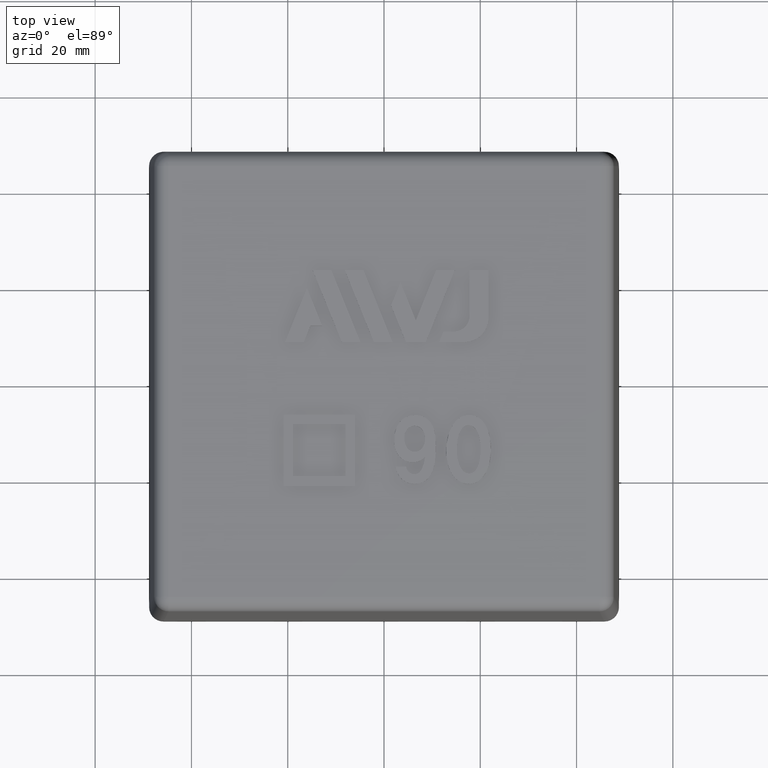
[diagram: clean part render]
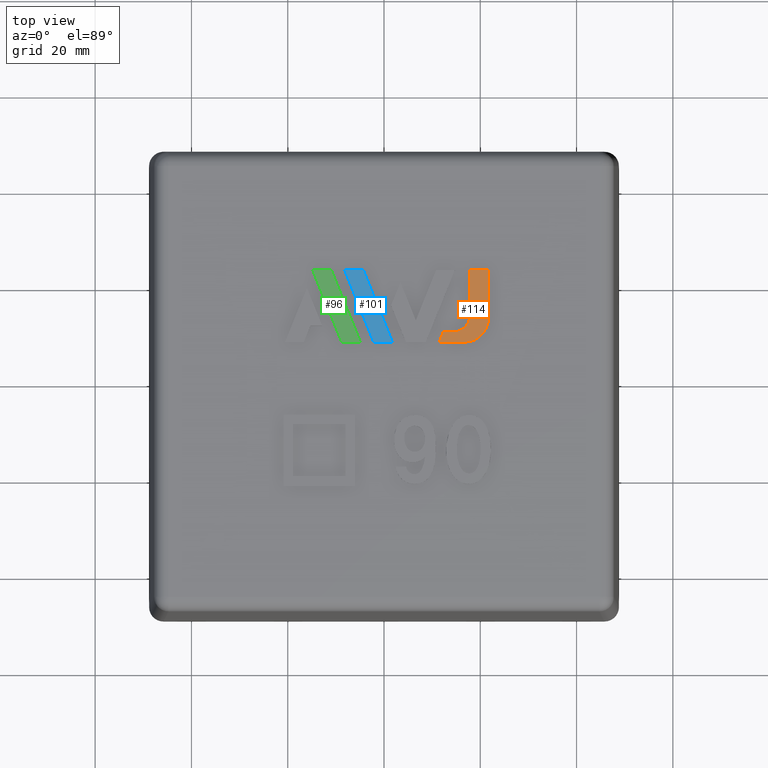
[diagram: same view with three faces highlighted in distinct colors, each labeled with its STEP entity id]
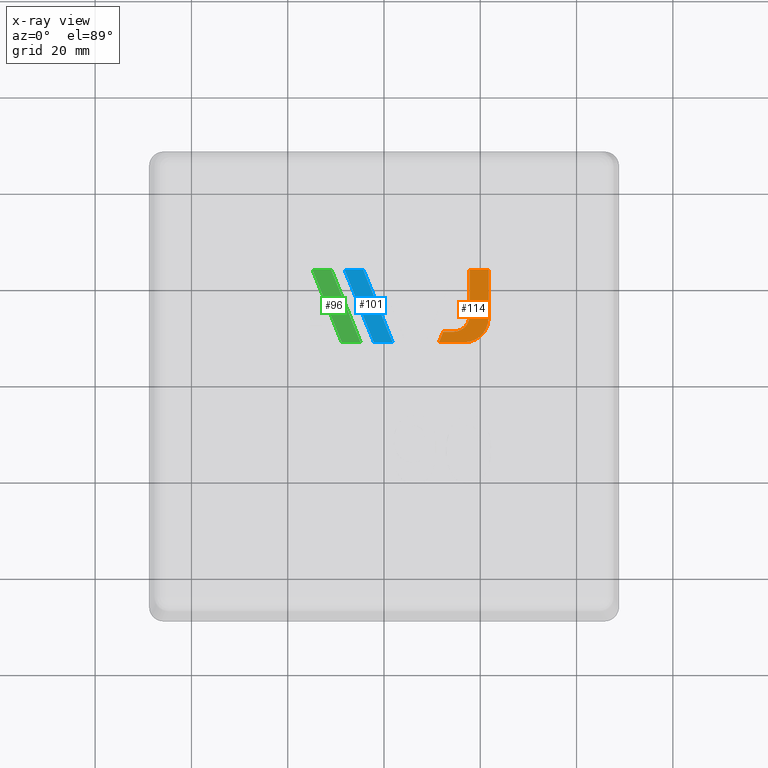
[diagram: x-ray of the same camera — body ghosted, the three highlighted faces saturated]
A machine part, top view with three faces highlighted in distinct colors.
The next image is the same camera in x-ray (body ghosted, the three faces saturated) — at least one of them is partly hidden behind the body in this view.
Their STEP definitions:

[orange] entity #114 — the highlighted planar face has unit normal (0, 0, 1).
#114 = ADVANCED_FACE( '', ( #240 ), #241, .T. );
#240 = FACE_OUTER_BOUND( '', #412, .T. );
#241 = PLANE( '', #413 );
#412 = EDGE_LOOP( '', ( #846, #847, #848, #849, #850, #851, #852, #853 ) );
#413 = AXIS2_PLACEMENT_3D( '', #854, #855, #856 );
#846 = ORIENTED_EDGE( '', *, *, #1264, .T. );
#847 = ORIENTED_EDGE( '', *, *, #1265, .T. );
#848 = ORIENTED_EDGE( '', *, *, #1266, .T. );
#849 = ORIENTED_EDGE( '', *, *, #1267, .T. );
#850 = ORIENTED_EDGE( '', *, *, #1268, .T. );
#851 = ORIENTED_EDGE( '', *, *, #1269, .T. );
#852 = ORIENTED_EDGE( '', *, *, #1270, .T. );
#853 = ORIENTED_EDGE( '', *, *, #1271, .T. );
#854 = CARTESIAN_POINT( '', ( 530.001291427255, 205.308361598627, 63.5000000000001 ) );
#855 = DIRECTION( '', ( 0.000000000000000, 6.12303176911189E-017, 1.00000000000000 ) );
#856 = DIRECTION( '', ( -1.00000000000000, 0.000000000000000, 0.000000000000000 ) );
#1264 = EDGE_CURVE( '', #1519, #1520, #1521, .T. );
#1265 = EDGE_CURVE( '', #1520, #1522, #1523, .T. );
#1266 = EDGE_CURVE( '', #1522, #1524, #1525, .F. );
#1267 = EDGE_CURVE( '', #1524, #1526, #1527, .T. );
#1268 = EDGE_CURVE( '', #1526, #1528, #1529, .T. );
#1269 = EDGE_CURVE( '', #1528, #1530, #1531, .T. );
#1270 = EDGE_CURVE( '', #1530, #1532, #1533, .T. );
#1271 = EDGE_CURVE( '', #1532, #1519, #1534, .T. );
#1519 = VERTEX_POINT( '', #2011 );
#1520 = VERTEX_POINT( '', #2012 );
#1521 = LINE( '', #2013, #2014 );
#1522 = VERTEX_POINT( '', #2015 );
#1523 = LINE( '', #2016, #2017 );
#1524 = VERTEX_POINT( '', #2018 );
#1525 = CIRCLE( '', #2019, 3.33500000000000 );
#1526 = VERTEX_POINT( '', #2020 );
#1527 = LINE( '', #2021, #2022 );
#1528 = VERTEX_POINT( '', #2023 );
#1529 = LINE( '', #2024, #2025 );
#1530 = VERTEX_POINT( '', #2026 );
#1531 = LINE( '', #2027, #2028 );
#1532 = VERTEX_POINT( '', #2029 );
#1533 = CIRCLE( '', #2030, 5.00250000000000 );
#1534 = LINE( '', #2031, #2032 );
#2011 = CARTESIAN_POINT( '', ( 21.7060151249999, 23.1246711799999, 63.5000000000001 ) );
#2012 = CARTESIAN_POINT( '', ( 17.7868131699999, 23.1246711799999, 63.5000000000001 ) );
#2013 = CARTESIAN_POINT( '', ( 21.7060151249999, 23.1246711799999, 63.5000000000001 ) );
#2014 = VECTOR( '', #2318, 1000.00000000000 );
#2015 = CARTESIAN_POINT( '', ( 17.7868131699999, 13.6439281774999, 63.5000000000001 ) );
#2016 = CARTESIAN_POINT( '', ( 17.7868131699999, 23.1246711799999, 63.5000000000001 ) );
#2017 = VECTOR( '', #2319, 1000.00000000000 );
#2018 = CARTESIAN_POINT( '', ( 14.4518131699999, 10.3089281774999, 63.5000000000001 ) );
#2019 = AXIS2_PLACEMENT_3D( '', #2320, #2321, #2322 );
#2020 = CARTESIAN_POINT( '', ( 12.3216702974999, 10.3089281774998, 63.5000000000001 ) );
#2021 = CARTESIAN_POINT( '', ( 14.4518131699999, 10.3089281774999, 63.5000000000001 ) );
#2022 = VECTOR( '', #2323, 1000.00000000000 );
#2023 = CARTESIAN_POINT( '', ( 11.4405799725000, 8.12814999999982, 63.5000000000001 ) );
#2024 = CARTESIAN_POINT( '', ( 12.3216702974999, 10.3089281774999, 63.5000000000001 ) );
#2025 = VECTOR( '', #2324, 1000.00000000000 );
#2026 = CARTESIAN_POINT( '', ( 16.7035151249999, 8.12814999999982, 63.5000000000001 ) );
#2027 = CARTESIAN_POINT( '', ( 11.4405799725000, 8.12814999999982, 63.5000000000001 ) );
#2028 = VECTOR( '', #2325, 1000.00000000000 );
#2029 = CARTESIAN_POINT( '', ( 21.7060151249999, 13.1306499999998, 63.5000000000001 ) );
#2030 = AXIS2_PLACEMENT_3D( '', #2326, #2327, #2328 );
#2031 = CARTESIAN_POINT( '', ( 21.7060151249999, 13.1306499999998, 63.5000000000001 ) );
#2032 = VECTOR( '', #2329, 1000.00000000000 );
#2318 = DIRECTION( '', ( -1.00000000000000, -1.66533453693774E-016, 1.01968962758690E-032 ) );
#2319 = DIRECTION( '', ( -2.22044604925031E-016, -1.00000000000000, 6.12303176911189E-017 ) );
#2320 = CARTESIAN_POINT( '', ( 14.4518131699999, 13.6439281774999, 63.5000000000001 ) );
#2321 = DIRECTION( '', ( 0.000000000000000, 6.12303176911189E-017, 1.00000000000000 ) );
#2322 = DIRECTION( '', ( 0.000000000000000, -1.00000000000000, 6.12303176911189E-017 ) );
#2323 = DIRECTION( '', ( -1.00000000000000, -2.77555756156289E-016, 1.69948271264483E-032 ) );
#2324 = DIRECTION( '', ( -0.374606136016172, -0.927184039368147, 5.67717732886465E-017 ) );
#2325 = DIRECTION( '', ( 1.00000000000000, 2.22044604925031E-016, -1.35958617011586E-032 ) );
#2326 = CARTESIAN_POINT( '', ( 16.7035151249999, 13.1306499999998, 63.5000000000001 ) );
#2327 = DIRECTION( '', ( 0.000000000000000, 6.12303176911189E-017, 1.00000000000000 ) );
#2328 = DIRECTION( '', ( 0.000000000000000, -1.00000000000000, 6.12303176911189E-017 ) );
#2329 = DIRECTION( '', ( 2.22044604925031E-016, 1.00000000000000, -6.12303176911189E-017 ) );

[blue] entity #101 — the highlighted planar face has unit normal (0, 0, 1).
#101 = ADVANCED_FACE( '', ( #214 ), #215, .T. );
#214 = FACE_OUTER_BOUND( '', #386, .T. );
#215 = PLANE( '', #387 );
#386 = EDGE_LOOP( '', ( #752, #753, #754, #755 ) );
#387 = AXIS2_PLACEMENT_3D( '', #756, #757, #758 );
#752 = ORIENTED_EDGE( '', *, *, #1242, .T. );
#753 = ORIENTED_EDGE( '', *, *, #1243, .T. );
#754 = ORIENTED_EDGE( '', *, *, #1244, .T. );
#755 = ORIENTED_EDGE( '', *, *, #1245, .T. );
#756 = CARTESIAN_POINT( '', ( 530.001291427255, 205.308361598627, 63.5000000000001 ) );
#757 = DIRECTION( '', ( 0.000000000000000, 6.12303176911189E-017, 1.00000000000000 ) );
#758 = DIRECTION( '', ( -1.00000000000000, 0.000000000000000, 0.000000000000000 ) );
#1242 = EDGE_CURVE( '', #1486, #1487, #1488, .T. );
#1243 = EDGE_CURVE( '', #1487, #1489, #1490, .T. );
#1244 = EDGE_CURVE( '', #1489, #1491, #1492, .T. );
#1245 = EDGE_CURVE( '', #1491, #1486, #1493, .T. );
#1486 = VERTEX_POINT( '', #1956 );
#1487 = VERTEX_POINT( '', #1957 );
#1488 = LINE( '', #1958, #1959 );
#1489 = VERTEX_POINT( '', #1960 );
#1490 = LINE( '', #1961, #1962 );
#1491 = VERTEX_POINT( '', #1963 );
#1492 = LINE( '', #1964, #1965 );
#1493 = LINE( '', #1966, #1967 );
#1956 = CARTESIAN_POINT( '', ( -2.10782084250005, 8.12814999999982, 63.5000000000001 ) );
#1957 = CARTESIAN_POINT( '', ( 1.76738245749995, 8.12814999999982, 63.5000000000001 ) );
#1958 = CARTESIAN_POINT( '', ( -2.10782084250005, 8.12814999999982, 63.5000000000001 ) );
#1959 = VECTOR( '', #2296, 1000.00000000000 );
#1960 = CARTESIAN_POINT( '', ( -4.29225418000006, 23.1246711799998, 63.5000000000001 ) );
#1961 = CARTESIAN_POINT( '', ( 1.76738245749995, 8.12814999999982, 63.5000000000001 ) );
#1962 = VECTOR( '', #2297, 1000.00000000000 );
#1963 = CARTESIAN_POINT( '', ( -8.16745581250004, 23.1246711799998, 63.5000000000001 ) );
#1964 = CARTESIAN_POINT( '', ( -4.29225418000006, 23.1246711799998, 63.5000000000001 ) );
#1965 = VECTOR( '', #2298, 1000.00000000000 );
#1966 = CARTESIAN_POINT( '', ( -8.16745581250004, 23.1246711799998, 63.5000000000001 ) );
#1967 = VECTOR( '', #2299, 1000.00000000000 );
#2296 = DIRECTION( '', ( 1.00000000000000, 0.000000000000000, 0.000000000000000 ) );
#2297 = DIRECTION( '', ( -0.374641075834904, 0.927169922019295, -5.67709088788913E-017 ) );
#2298 = DIRECTION( '', ( -1.00000000000000, 0.000000000000000, 0.000000000000000 ) );
#2299 = DIRECTION( '', ( 0.374640987210496, -0.927169957829709, 5.67709110715744E-017 ) );

[green] entity #96 — the highlighted planar face has unit normal (0, 0, 1).
#96 = ADVANCED_FACE( '', ( #204 ), #205, .T. );
#204 = FACE_OUTER_BOUND( '', #376, .T. );
#205 = PLANE( '', #377 );
#376 = EDGE_LOOP( '', ( #717, #718, #719, #720 ) );
#377 = AXIS2_PLACEMENT_3D( '', #721, #722, #723 );
#717 = ORIENTED_EDGE( '', *, *, #1234, .T. );
#718 = ORIENTED_EDGE( '', *, *, #1235, .T. );
#719 = ORIENTED_EDGE( '', *, *, #1236, .T. );
#720 = ORIENTED_EDGE( '', *, *, #1237, .T. );
#721 = CARTESIAN_POINT( '', ( 530.001291427255, 205.308361598627, 63.5000000000001 ) );
#722 = DIRECTION( '', ( 0.000000000000000, 6.12303176911189E-017, 1.00000000000000 ) );
#723 = DIRECTION( '', ( -1.00000000000000, 0.000000000000000, 0.000000000000000 ) );
#1234 = EDGE_CURVE( '', #1474, #1475, #1476, .T. );
#1235 = EDGE_CURVE( '', #1475, #1477, #1478, .T. );
#1236 = EDGE_CURVE( '', #1477, #1479, #1480, .T. );
#1237 = EDGE_CURVE( '', #1479, #1474, #1481, .T. );
#1474 = VERTEX_POINT( '', #1936 );
#1475 = VERTEX_POINT( '', #1937 );
#1476 = LINE( '', #1938, #1939 );
#1477 = VERTEX_POINT( '', #1940 );
#1478 = LINE( '', #1941, #1942 );
#1479 = VERTEX_POINT( '', #1943 );
#1480 = LINE( '', #1944, #1945 );
#1481 = LINE( '', #1946, #1947 );
#1936 = CARTESIAN_POINT( '', ( -8.77119419750006, 8.12814999999981, 63.5000000000001 ) );
#1937 = CARTESIAN_POINT( '', ( -4.89626770250005, 8.12814999999982, 63.5000000000001 ) );
#1938 = CARTESIAN_POINT( '', ( -8.77119419750006, 8.12814999999982, 63.5000000000001 ) );
#1939 = VECTOR( '', #2288, 1000.00000000000 );
#1940 = CARTESIAN_POINT( '', ( -10.9559043400001, 23.1246711799998, 63.5000000000001 ) );
#1941 = CARTESIAN_POINT( '', ( -4.89626770250005, 8.12814999999982, 63.5000000000001 ) );
#1942 = VECTOR( '', #2289, 1000.00000000000 );
#1943 = CARTESIAN_POINT( '', ( -14.8299787425001, 23.1246711799998, 63.5000000000001 ) );
#1944 = CARTESIAN_POINT( '', ( -10.9559043400001, 23.1246711799998, 63.5000000000001 ) );
#1945 = VECTOR( '', #2290, 1000.00000000000 );
#1946 = CARTESIAN_POINT( '', ( -14.8299787425001, 23.1246711799998, 63.5000000000001 ) );
#1947 = VECTOR( '', #2291, 1000.00000000000 );
#2288 = DIRECTION( '', ( 1.00000000000000, 0.000000000000000, 0.000000000000000 ) );
#2289 = DIRECTION( '', ( -0.374641075834905, 0.927169922019295, -5.67709088788913E-017 ) );
#2290 = DIRECTION( '', ( -1.00000000000000, 0.000000000000000, 0.000000000000000 ) );
#2291 = DIRECTION( '', ( 0.374595787424495, -0.927188220397468, 5.67720292944001E-017 ) );